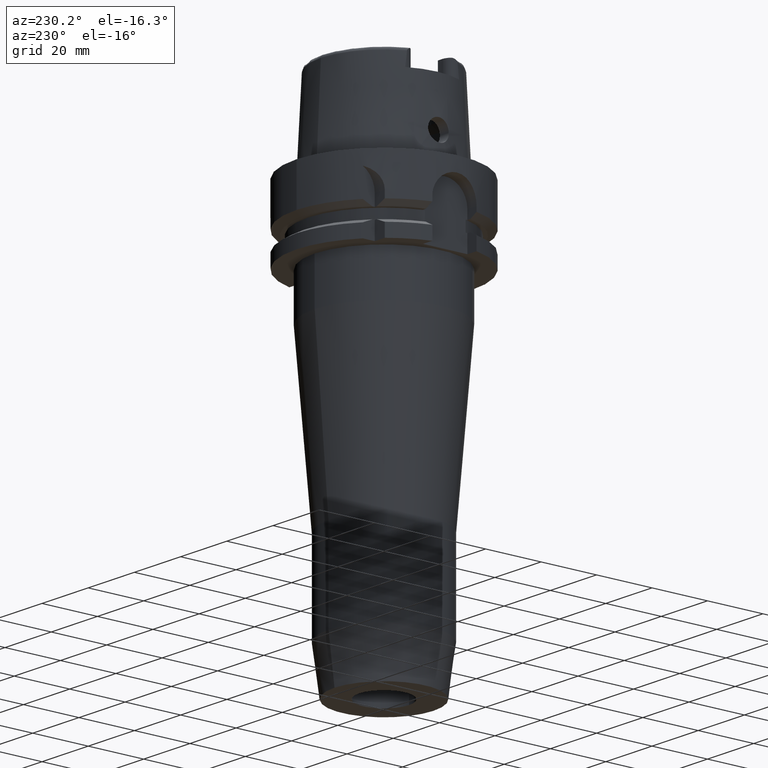
[diagram: clean part render]
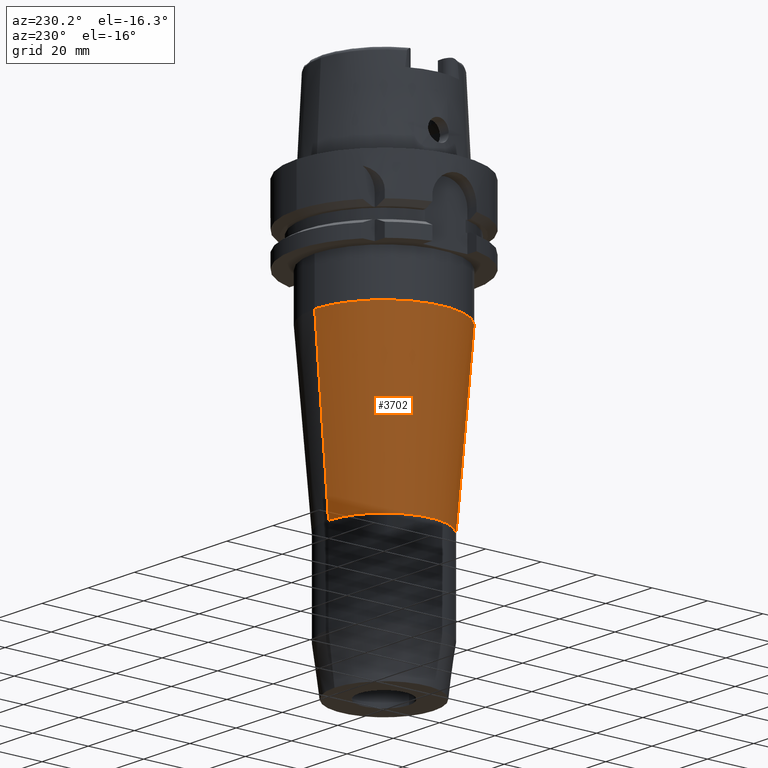
[diagram: same view with one face highlighted and labeled with its STEP entity id]
A machine part, auxiliary view. The second image highlights one B-rep face of the part: STEP entity #3702.
In plain terms, the highlighted conical surface has half-angle 4.757 deg.
Its self-contained STEP definition (entity closure, byte-faithful):
#1623=DIRECTION('',(0.E0,-8.292996033848E-2,-9.965553781292E-1));
#1624=VECTOR('',#1623,6.029184120665E1);
#1625=CARTESIAN_POINT('',(0.E0,2.5E1,-4.2E1));
#1626=LINE('',#1625,#1624);
#1646=CARTESIAN_POINT('',(0.E0,0.E0,-4.2E1));
#1647=DIRECTION('',(0.E0,0.E0,1.E0));
#1648=DIRECTION('',(0.E0,1.E0,0.E0));
#1649=AXIS2_PLACEMENT_3D('',#1646,#1647,#1648);
#1654=DIRECTION('',(0.E0,8.292996033848E-2,-9.965553781292E-1));
#1655=VECTOR('',#1654,6.029184120665E1);
#1656=CARTESIAN_POINT('',(0.E0,-2.5E1,-4.2E1));
#1657=LINE('',#1656,#1655);
#1661=CARTESIAN_POINT('',(0.E0,0.E0,-1.020841586118E2));
#1662=DIRECTION('',(0.E0,0.E0,-1.E0));
#1663=DIRECTION('',(0.E0,-1.E0,0.E0));
#1664=AXIS2_PLACEMENT_3D('',#1661,#1662,#1663);
#2438=CARTESIAN_POINT('',(0.E0,2.E1,-1.020841586118E2));
#2439=VERTEX_POINT('',#2438);
#2440=CARTESIAN_POINT('',(0.E0,-2.E1,-1.020841586118E2));
#2441=VERTEX_POINT('',#2440);
#2442=CARTESIAN_POINT('',(0.E0,2.5E1,-4.2E1));
#2443=VERTEX_POINT('',#2442);
#2444=CARTESIAN_POINT('',(0.E0,-2.5E1,-4.2E1));
#2445=VERTEX_POINT('',#2444);
#3690=CARTESIAN_POINT('',(0.E0,0.E0,-7.204207930590E1));
#3691=DIRECTION('',(0.E0,0.E0,1.E0));
#3692=DIRECTION('',(0.E0,1.E0,0.E0));
#3693=AXIS2_PLACEMENT_3D('',#3690,#3691,#3692);
#3694=CONICAL_SURFACE('',#3693,2.25E1,4.757E0);
#3695=ORIENTED_EDGE('',*,*,#3680,.F.);
#3696=ORIENTED_EDGE('',*,*,#3657,.T.);
#3697=ORIENTED_EDGE('',*,*,#3684,.T.);
#3699=ORIENTED_EDGE('',*,*,#3698,.T.);
#3700=EDGE_LOOP('',(#3695,#3696,#3697,#3699));
#3701=FACE_OUTER_BOUND('',#3700,.F.);
#1650=CIRCLE('',#1649,2.5E1);
#1665=CIRCLE('',#1664,2.E1);
#3657=EDGE_CURVE('',#2443,#2445,#1650,.T.);
#3680=EDGE_CURVE('',#2443,#2439,#1626,.T.);
#3684=EDGE_CURVE('',#2445,#2441,#1657,.T.);
#3698=EDGE_CURVE('',#2441,#2439,#1665,.T.);
#3702=ADVANCED_FACE('',(#3701),#3694,.T.);